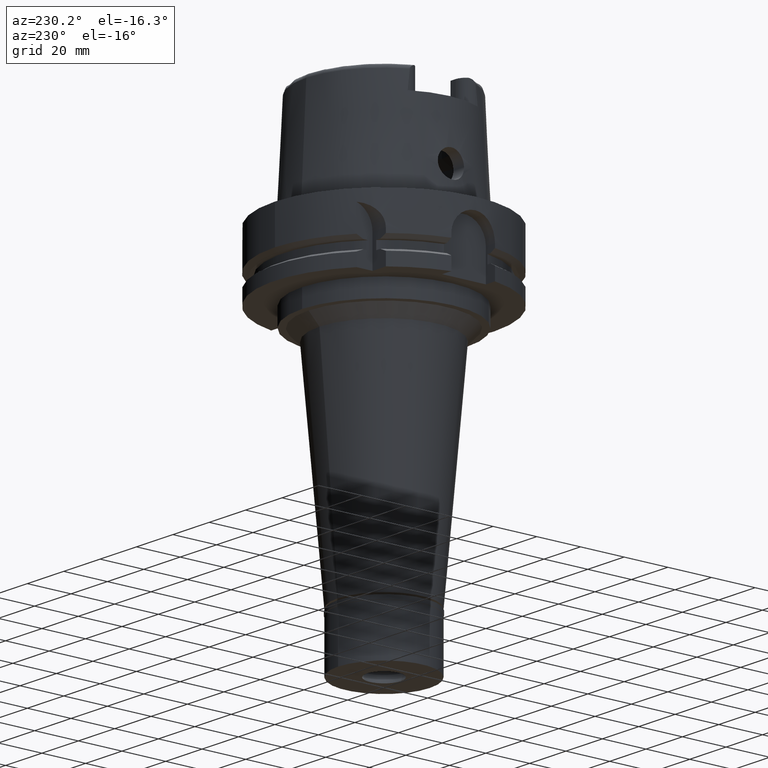
[diagram: clean part render]
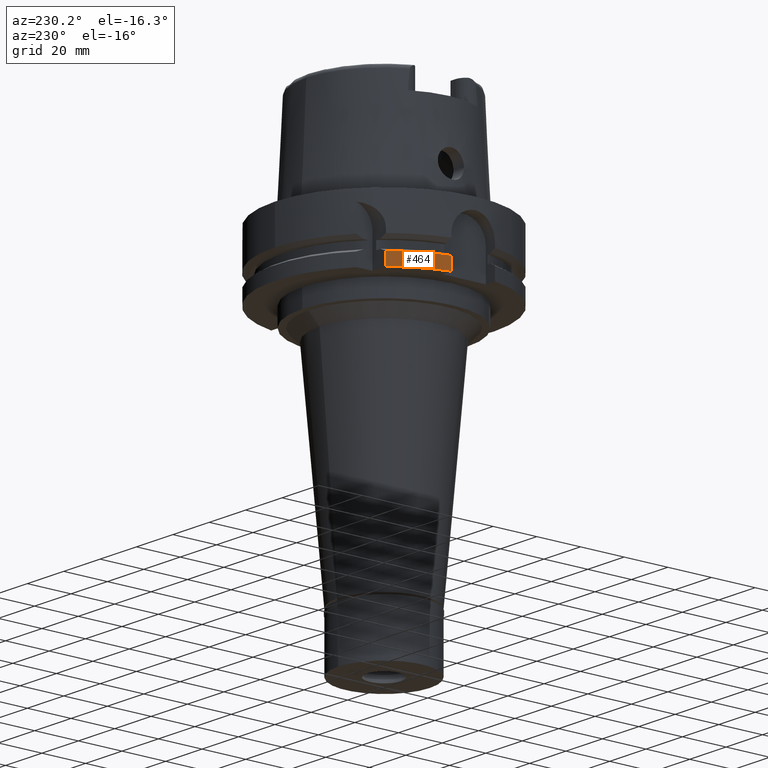
[diagram: same view with one face highlighted and labeled with its STEP entity id]
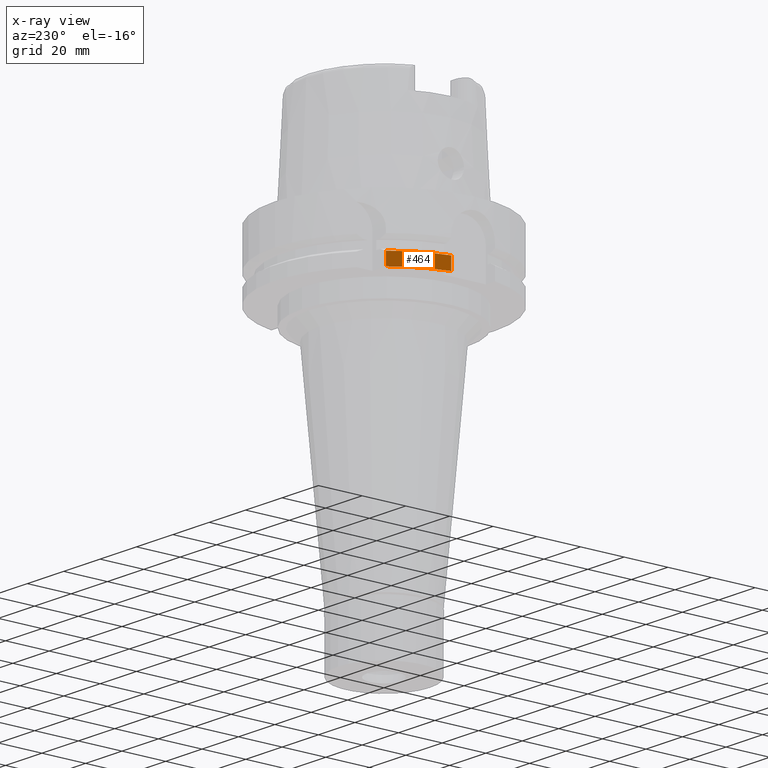
[diagram: x-ray of the same camera — body ghosted, the highlighted face saturated]
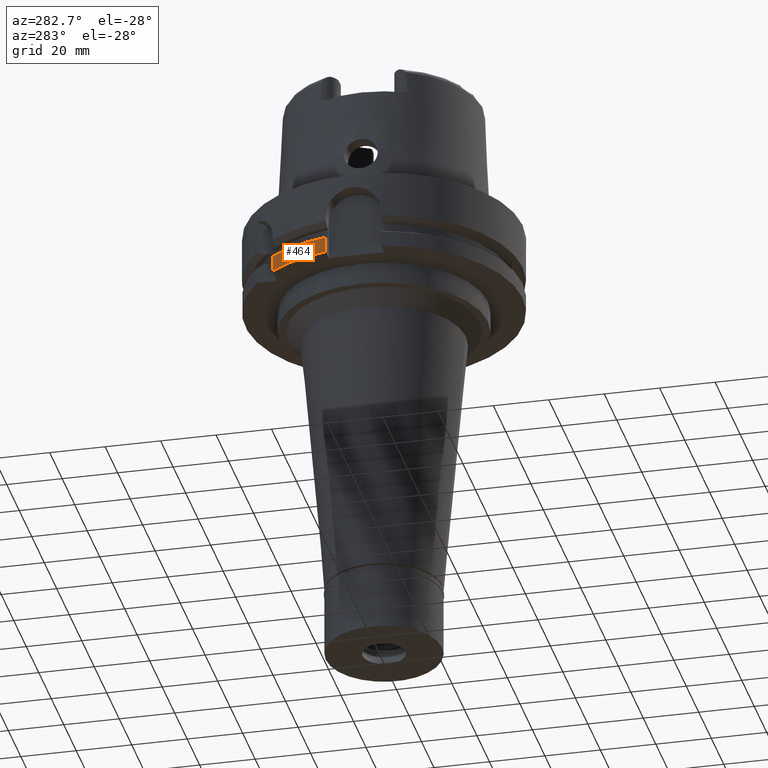
[diagram: same view with one face highlighted and labeled with its STEP entity id]
A machine part, auxiliary view. The second image highlights one B-rep face of the part: STEP entity #464.
The next image is the same camera in x-ray: the body ghosted, the highlighted face saturated — about 0% of this face is hidden behind the body in this view.
A second angle (auxiliary view) of the same face is appended — the face is thin or edge-on in the first view.
In plain terms, the highlighted cylindrical surface (partial cylindrical patch) has radius 50 mm, axis along (0, 0, 1).
Its self-contained STEP definition (entity closure, byte-faithful):
#159 = DIRECTION ( 'NONE',  ( 0.0000000000000000000, 1.000000000000000000, 0.0000000000000000000 ) ) ;
#172 = CIRCLE ( 'NONE', #3598, 50.00000000000000711 ) ;
#281 = DIRECTION ( 'NONE',  ( 0.0000000000000000000, 0.0000000000000000000, -1.000000000000000000 ) ) ;
#464 = ADVANCED_FACE ( 'NONE', ( #3570 ), #4877, .T. ) ;
#542 = ORIENTED_EDGE ( 'NONE', *, *, #5343, .F. ) ;
#582 = DIRECTION ( 'NONE',  ( 0.0000000000000000000, 0.0000000000000000000, 1.000000000000000000 ) ) ;
#630 = EDGE_CURVE ( 'NONE', #4105, #2781, #172, .T. ) ;
#1210 = DIRECTION ( 'NONE',  ( -8.399427413532000465E-14, 0.0000000000000000000, -1.000000000000000000 ) ) ;
#1281 = DIRECTION ( 'NONE',  ( -0.9797958971132723072, 0.1999999999999946265, 0.0000000000000000000 ) ) ;
#1630 = CARTESIAN_POINT ( 'NONE',  ( -38.82975730076999810, 31.49999917402000094, -23.24759226099000031 ) ) ;
#1691 = AXIS2_PLACEMENT_3D ( 'NONE', #3323, #281, #1281 ) ;
#1815 = CARTESIAN_POINT ( 'NONE',  ( -48.98979485565999425, 10.00000000000000000, -23.24759526419000011 ) ) ;
#2013 = CARTESIAN_POINT ( 'NONE',  ( -38.82975663071000128, 31.50000000000000000, -29.00000000000000000 ) ) ;
#2469 = CARTESIAN_POINT ( 'NONE',  ( -38.82975663071000128, 31.50000000000000000, -29.00000000000000000 ) ) ;
#2580 = CARTESIAN_POINT ( 'NONE',  ( 0.0000000000000000000, 0.0000000000000000000, -29.00000000000000000 ) ) ;
#2642 = DIRECTION ( 'NONE',  ( 0.0000000000000000000, 0.0000000000000000000, 1.000000000000000000 ) ) ;
#2781 = VERTEX_POINT ( 'NONE', #3181 ) ;
#2885 = LINE ( 'NONE', #2469, #2985 ) ;
#2985 = VECTOR ( 'NONE', #4138, 1000.000000000000227 ) ;
#3181 = CARTESIAN_POINT ( 'NONE',  ( -48.98979485565999425, 10.00000000000000000, -29.00000000000000000 ) ) ;
#3323 = CARTESIAN_POINT ( 'NONE',  ( 0.0000000000000000000, 0.0000000000000000000, -23.24759526419000011 ) ) ;
#3335 = LINE ( 'NONE', #5062, #5429 ) ;
#3387 = DIRECTION ( 'NONE',  ( -0.7765951326141738997, 0.6299999999999789102, 0.0000000000000000000 ) ) ;
#3530 = EDGE_CURVE ( 'NONE', #5504, #4364, #5312, .T. ) ;
#3570 = FACE_OUTER_BOUND ( 'NONE', #3835, .T. ) ;
#3598 = AXIS2_PLACEMENT_3D ( 'NONE', #2580, #2642, #3387 ) ;
#3612 = ORIENTED_EDGE ( 'NONE', *, *, #3530, .T. ) ;
#3835 = EDGE_LOOP ( 'NONE', ( #4730, #542, #3612, #5566 ) ) ;
#3870 = AXIS2_PLACEMENT_3D ( 'NONE', #4450, #582, #159 ) ;
#4105 = VERTEX_POINT ( 'NONE', #2013 ) ;
#4138 = DIRECTION ( 'NONE',  ( -1.164835666499979694E-07, -1.435883620958975412E-07, 0.9999999999999827915 ) ) ;
#4364 = VERTEX_POINT ( 'NONE', #1630 ) ;
#4450 = CARTESIAN_POINT ( 'NONE',  ( 0.0000000000000000000, 0.0000000000000000000, -167.8750000000000000 ) ) ;
#4730 = ORIENTED_EDGE ( 'NONE', *, *, #630, .T. ) ;
#4877 = CYLINDRICAL_SURFACE ( 'NONE', #3870, 50.00000000000000000 ) ;
#5062 = CARTESIAN_POINT ( 'NONE',  ( -48.98979485565999425, 10.00000000000000000, -23.24759526419000011 ) ) ;
#5312 = CIRCLE ( 'NONE', #1691, 49.99999999999997868 ) ;
#5343 = EDGE_CURVE ( 'NONE', #5504, #2781, #3335, .T. ) ;
#5407 = EDGE_CURVE ( 'NONE', #4105, #4364, #2885, .T. ) ;
#5429 = VECTOR ( 'NONE', #1210, 1000.000000000000000 ) ;
#5504 = VERTEX_POINT ( 'NONE', #1815 ) ;
#5566 = ORIENTED_EDGE ( 'NONE', *, *, #5407, .F. ) ;